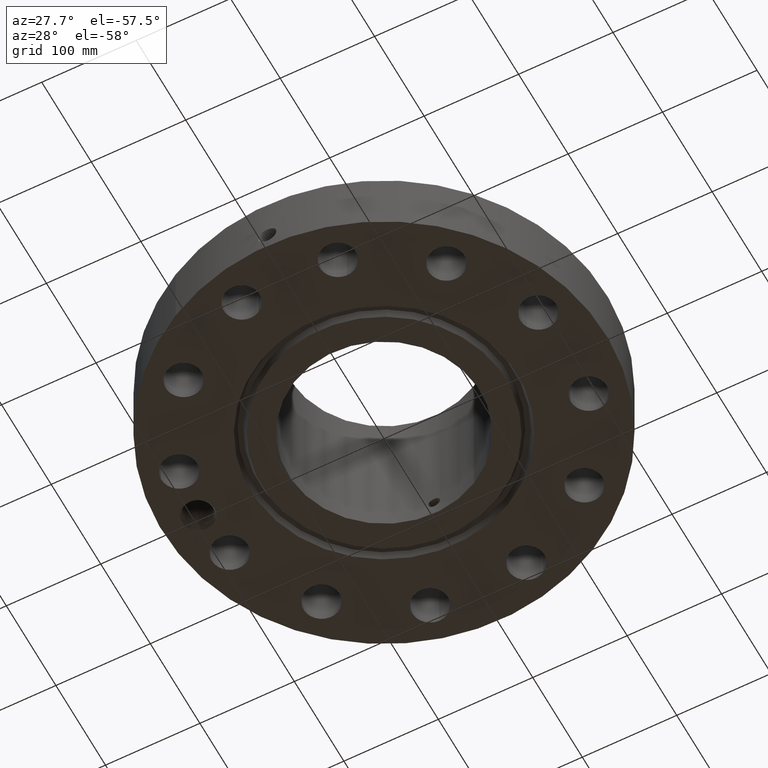
[diagram: clean part render]
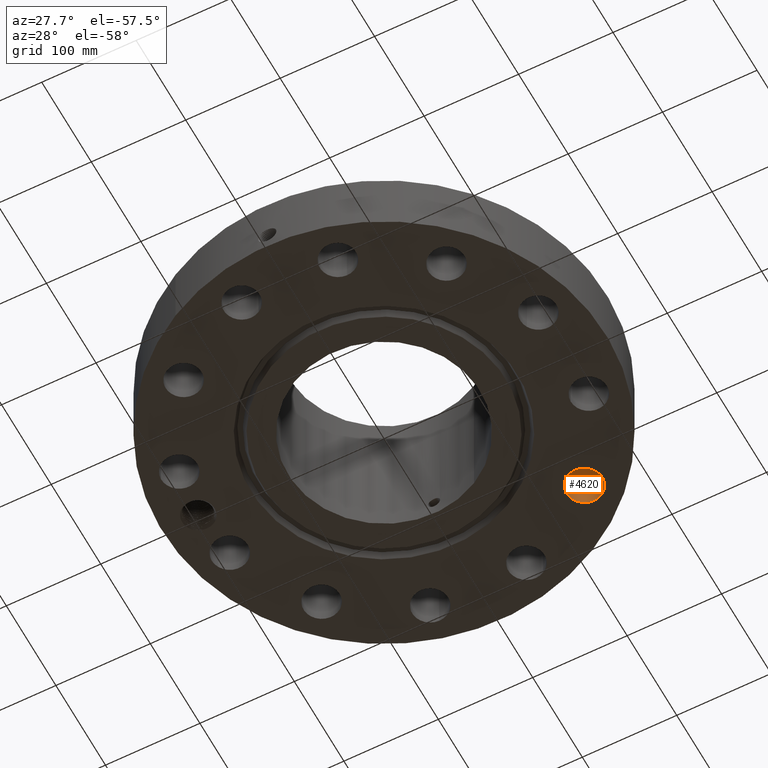
[diagram: same view with one face highlighted and labeled with its STEP entity id]
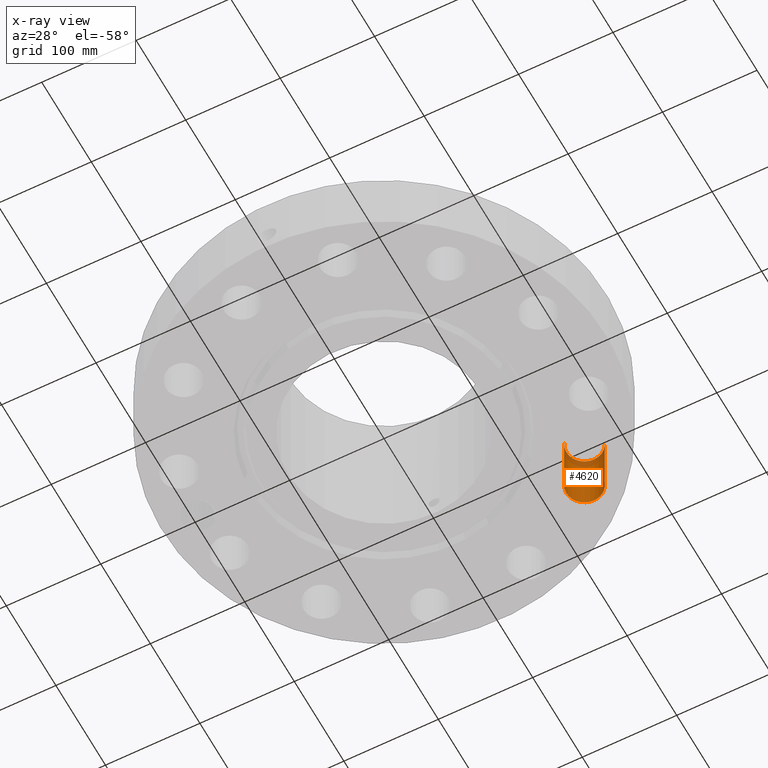
[diagram: x-ray of the same camera — body ghosted, the highlighted face saturated]
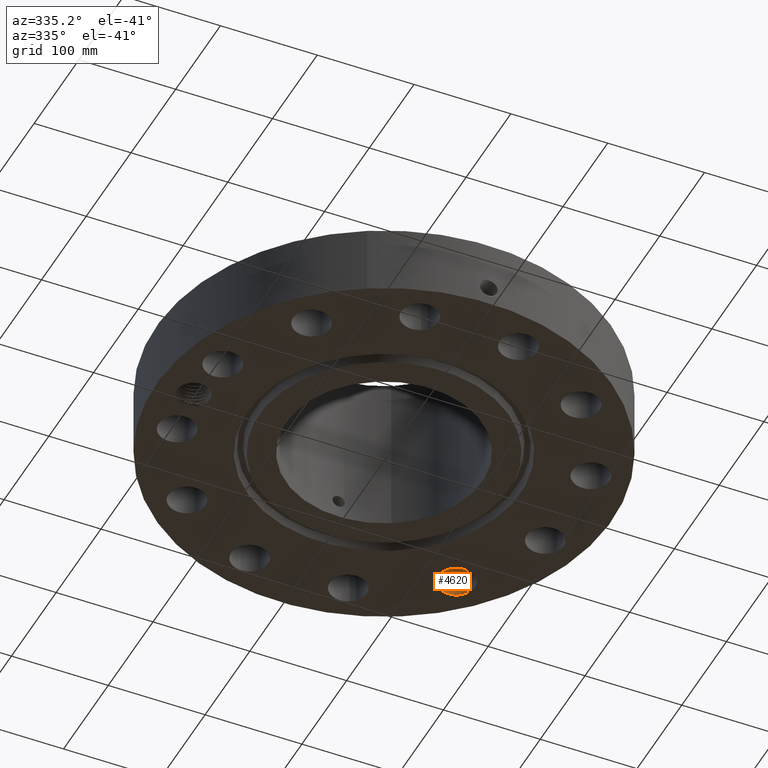
[diagram: same view with one face highlighted and labeled with its STEP entity id]
A machine part, auxiliary view. The second image highlights one B-rep face of the part: STEP entity #4620.
The next image is the same camera in x-ray: the body ghosted, the highlighted face saturated — about 14% of this face is hidden behind the body in this view.
A second angle (auxiliary view) of the same face is appended — the face is thin or edge-on in the first view.
In plain terms, the highlighted cylindrical surface (edge-blend (fillet) strip) has radius 19.05 mm, axis along (0, 0, -1).
Its self-contained STEP definition (entity closure, byte-faithful):
#3175=AXIS2_PLACEMENT_3D('Circle Axis2P3D',#3173,#3174,$) ;
#4593=AXIS2_PLACEMENT_3D('Cylinder Axis2P3D',#4590,#4591,#4592) ;
#4604=AXIS2_PLACEMENT_3D('Circle Axis2P3D',#4602,#4603,$) ;
#3168=CARTESIAN_POINT('Vertex',(6.12056703667,5.87029957163,2.81200000001)) ;
#3170=CARTESIAN_POINT('Vertex',(4.83958807177,5.08985553681,2.81200000001)) ;
#3173=CARTESIAN_POINT('Axis2P3D Location',(5.48007755422,5.48007755422,2.81200000001)) ;
#4590=CARTESIAN_POINT('Axis2P3D Location',(5.48007755422,5.48007755422,2.80806299214)) ;
#4595=CARTESIAN_POINT('Line Origine',(4.83958807177,5.08985553681,1.40600000001)) ;
#4599=CARTESIAN_POINT('Vertex',(4.83958807177,5.08985553681,0.)) ;
#4602=CARTESIAN_POINT('Axis2P3D Location',(5.48007755422,5.48007755422,0.)) ;
#4606=CARTESIAN_POINT('Vertex',(6.12056703667,5.87029957163,0.)) ;
#4609=CARTESIAN_POINT('Line Origine',(6.12056703667,5.87029957163,1.40600000001)) ;
#3174=DIRECTION('Axis2P3D Direction',(0.,0.,-0.0393700787402)) ;
#4591=DIRECTION('Axis2P3D Direction',(0.,0.,-0.0393700787402)) ;
#4592=DIRECTION('Axis2P3D XDirection',(0.0336214951417,0.0204840954021,0.)) ;
#4596=DIRECTION('Vector Direction',(0.,0.,-0.0393700787402)) ;
#4603=DIRECTION('Axis2P3D Direction',(0.,0.,-0.0393700787402)) ;
#4610=DIRECTION('Vector Direction',(0.,0.,-0.0393700787402)) ;
#4597=VECTOR('Line Direction',#4596,0.0393700787402) ;
#4611=VECTOR('Line Direction',#4610,0.0393700787402) ;
#4615=ORIENTED_EDGE('',*,*,#4601,.F.) ;
#4616=ORIENTED_EDGE('',*,*,#4608,.T.) ;
#4617=ORIENTED_EDGE('',*,*,#4613,.T.) ;
#4618=ORIENTED_EDGE('',*,*,#3177,.F.) ;
#4620=ADVANCED_FACE('PartBody',(#4619),#4594,.F.) ;
#3176=CIRCLE('generated circle',#3175,0.750000000003) ;
#4605=CIRCLE('generated circle',#4604,0.750000000003) ;
#4594=CYLINDRICAL_SURFACE('generated cylinder',#4593,0.750000000003) ;
#3177=EDGE_CURVE('',#3171,#3169,#3176,.T.) ;
#4601=EDGE_CURVE('',#4600,#3171,#4598,.F.) ;
#4608=EDGE_CURVE('',#4600,#4607,#4605,.T.) ;
#4613=EDGE_CURVE('',#4607,#3169,#4612,.F.) ;
#4614=EDGE_LOOP('',(#4615,#4616,#4617,#4618)) ;
#4619=FACE_OUTER_BOUND('',#4614,.T.) ;
#4598=LINE('Line',#4595,#4597) ;
#4612=LINE('Line',#4609,#4611) ;
#3169=VERTEX_POINT('',#3168) ;
#3171=VERTEX_POINT('',#3170) ;
#4600=VERTEX_POINT('',#4599) ;
#4607=VERTEX_POINT('',#4606) ;